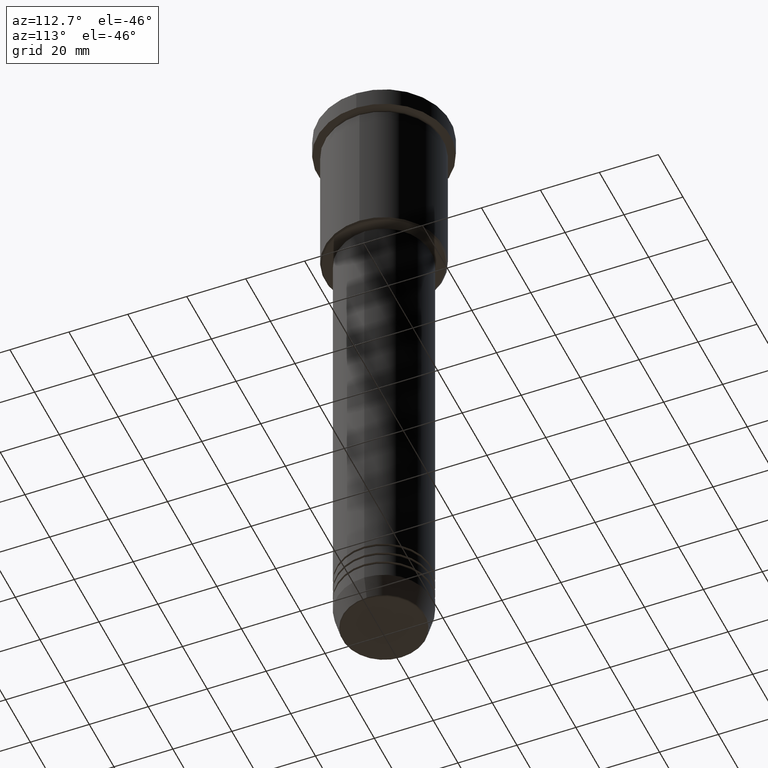
[diagram: clean part render]
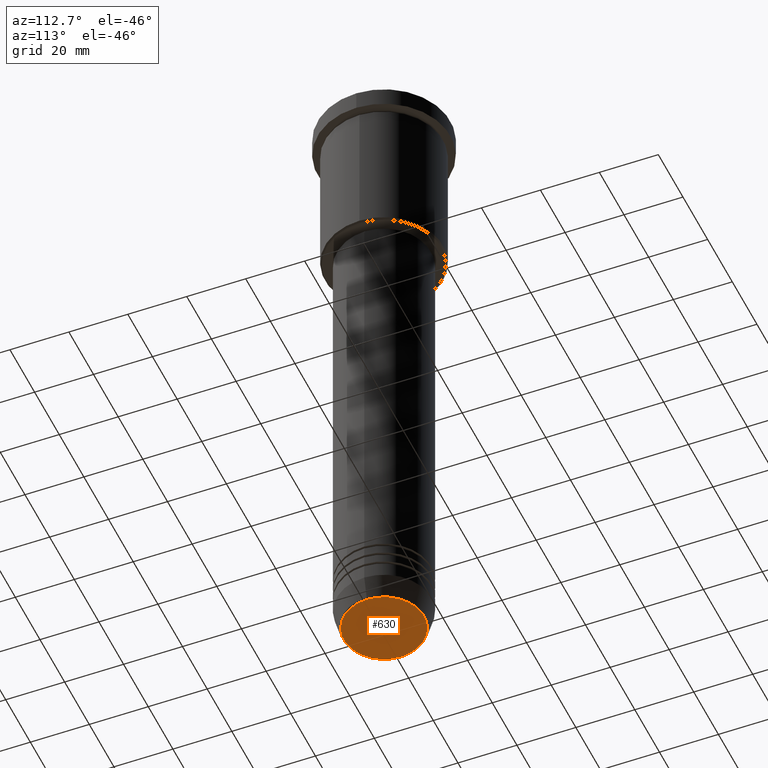
[diagram: same view with one face highlighted and labeled with its STEP entity id]
A machine part, auxiliary view. The second image highlights one B-rep face of the part: STEP entity #630.
In plain terms, the highlighted planar face has unit normal (0, -0, 1).
Its self-contained STEP definition (entity closure, byte-faithful):
#2 = ORIENTED_EDGE ( 'NONE', *, *, #1131, .T. ) ;
#96 = DIRECTION ( 'NONE',  ( 1.000000000000000000, 0.000000000000000000, 0.000000000000000000 ) ) ;
#138 = VERTEX_POINT ( 'NONE', #339 ) ;
#250 = CARTESIAN_POINT ( 'NONE',  ( -13.60671756277710109, 1.695915260300172047E-15, -219.9999999999999716 ) ) ;
#264 = CIRCLE ( 'NONE', #846, 13.60671756277710109 ) ;
#265 = VERTEX_POINT ( 'NONE', #250 ) ;
#314 = AXIS2_PLACEMENT_3D ( 'NONE', #1080, #369, #1005 ) ;
#318 = DIRECTION ( 'NONE',  ( 0.000000000000000000, 0.000000000000000000, -1.000000000000000000 ) ) ;
#329 = CARTESIAN_POINT ( 'NONE',  ( 0.000000000000000000, 0.000000000000000000, -219.9999999999999716 ) ) ;
#339 = CARTESIAN_POINT ( 'NONE',  ( 13.60671756277710109, 0.000000000000000000, -219.9999999999999716 ) ) ;
#342 = EDGE_CURVE ( 'NONE', #138, #265, #990, .T. ) ;
#369 = DIRECTION ( 'NONE',  ( 0.000000000000000000, -0.000000000000000000, 1.000000000000000000 ) ) ;
#374 = AXIS2_PLACEMENT_3D ( 'NONE', #927, #920, #96 ) ;
#558 = ORIENTED_EDGE ( 'NONE', *, *, #342, .T. ) ;
#630 = ADVANCED_FACE ( 'NONE', ( #738 ), #926, .F. ) ;
#694 = DIRECTION ( 'NONE',  ( 1.000000000000000000, 0.000000000000000000, 0.000000000000000000 ) ) ;
#738 = FACE_OUTER_BOUND ( 'NONE', #753, .T. ) ;
#753 = EDGE_LOOP ( 'NONE', ( #558, #2 ) ) ;
#846 = AXIS2_PLACEMENT_3D ( 'NONE', #329, #318, #694 ) ;
#920 = DIRECTION ( 'NONE',  ( 0.000000000000000000, 0.000000000000000000, -1.000000000000000000 ) ) ;
#926 = PLANE ( 'NONE',  #314 ) ;
#927 = CARTESIAN_POINT ( 'NONE',  ( 0.000000000000000000, 0.000000000000000000, -219.9999999999999716 ) ) ;
#990 = CIRCLE ( 'NONE', #374, 13.60671756277710109 ) ;
#1005 = DIRECTION ( 'NONE',  ( 1.000000000000000000, 0.000000000000000000, 0.000000000000000000 ) ) ;
#1080 = CARTESIAN_POINT ( 'NONE',  ( 0.000000000000000000, 0.000000000000000000, -219.9999999999999716 ) ) ;
#1131 = EDGE_CURVE ( 'NONE', #265, #138, #264, .T. ) ;